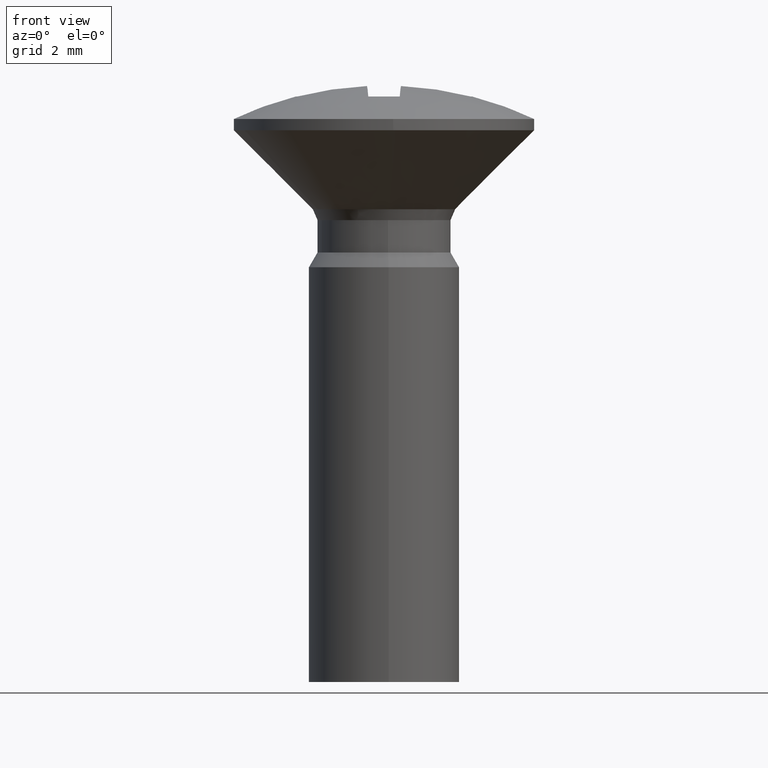
[diagram: clean part render]
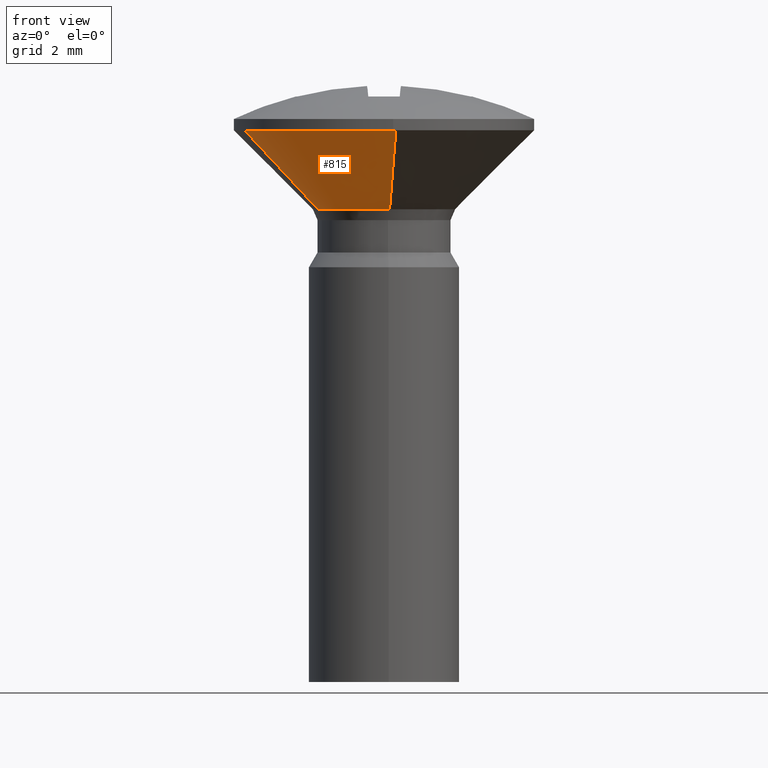
[diagram: same view with one face highlighted and labeled with its STEP entity id]
A machine part, front view. The second image highlights one B-rep face of the part: STEP entity #815.
In plain terms, the highlighted face is a freeform B-spline surface patch.
Its self-contained STEP definition (entity closure, byte-faithful):
#100=CARTESIAN_POINT('',(0.244193768757962,-3.992539217503020,-0.299999999999963));
#101=VERTEX_POINT('',#100);
#107=CARTESIAN_POINT('',(0.313836115509924,-3.987669028289972,-0.300000326692796));
#108=VERTEX_POINT('',#107);
#109=CARTESIAN_POINT('',(0.313836115509924,-3.987669028289972,-0.300000326692796));
#110=CARTESIAN_POINT('',(0.279035888811667,-3.990408188970513,-0.299999999999990));
#111=CARTESIAN_POINT('',(0.244193768757962,-3.992539217503020,-0.299999999999963));
#119=(BOUNDED_CURVE()B_SPLINE_CURVE(2,(#109,#110,#111),.UNSPECIFIED.,.F.,.U.)B_SPLINE_CURVE_WITH_KNOTS((3,3),(0.736331321419551,0.739332995898007),.UNSPECIFIED.)CURVE()GEOMETRIC_REPRESENTATION_ITEM()RATIONAL_B_SPLINE_CURVE((0.969723399552253,0.972855532959167,0.976072113804509))REPRESENTATION_ITEM(''));
#120=EDGE_CURVE('',#108,#101,#119,.T.);
#211=CARTESIAN_POINT('',(-3.719457679100426,-1.471609517971923,-0.299999999999405));
#212=VERTEX_POINT('',#211);
#226=CARTESIAN_POINT('',(0.244193768757962,-3.992539217503020,-0.299999999999963));
#227=CARTESIAN_POINT('',(0.122210662721106,-4.0,-0.299999999999990));
#228=CARTESIAN_POINT('',(0.0,-4.0,-0.299999999999990));
#229=CARTESIAN_POINT('',(-2.719095846936286,-4.0,-0.299999999999990));
#230=CARTESIAN_POINT('',(-3.719457679100427,-1.471609517971923,-0.299999999999405));
#238=(BOUNDED_CURVE()B_SPLINE_CURVE(2,(#226,#227,#228,#229,#230),.UNSPECIFIED.,.F.,.U.)B_SPLINE_CURVE_WITH_KNOTS((3,2,3),(0.739332995898006,0.750000000000000,0.937532549938958),.UNSPECIFIED.)CURVE()GEOMETRIC_REPRESENTATION_ITEM()RATIONAL_B_SPLINE_CURVE((0.976072113804507,0.987502827333882,1.0,0.780291951264337,0.890203187500767))REPRESENTATION_ITEM(''));
#239=EDGE_CURVE('',#101,#212,#238,.T.);
#768=CARTESIAN_POINT('',(-1.712785789023673,-0.677666500556094,-2.458128579622709));
#769=CARTESIAN_POINT('',(-1.212128404345949,-1.943066004503953,-2.458128579622709));
#770=CARTESIAN_POINT('',(0.144519589441585,-1.836295491832680,-2.458128579622709));
#771=CARTESIAN_POINT('',(-3.769624476354205,-1.491458093400987,-0.246046785509422));
#772=CARTESIAN_POINT('',(-2.667741016295589,-4.276442049373308,-0.246046785509422));
#773=CARTESIAN_POINT('',(0.318069302748127,-4.041453681010008,-0.246046785509422));
#781=(BOUNDED_SURFACE()B_SPLINE_SURFACE(2,1,((#768,#771),(#769,#772),(#770,#773)),.UNSPECIFIED.,.F.,.F.,.U.)B_SPLINE_SURFACE_WITH_KNOTS((3,3),(2,2),(0.0,5.336818170358812),(0.0,3.128281957581841),.UNSPECIFIED.)GEOMETRIC_REPRESENTATION_ITEM()RATIONAL_B_SPLINE_SURFACE(((0.906274169979695,0.906274169979695),(0.765685424949238,0.765685424949238),(1.0,1.0)))REPRESENTATION_ITEM('')SURFACE());
#782=CARTESIAN_POINT('',(0.148649267377790,-1.888768024630411,-2.405491297150141));
#783=VERTEX_POINT('',#782);
#784=CARTESIAN_POINT('',(-1.761729005883620,-0.697030964428379,-2.405491297153988));
#785=VERTEX_POINT('',#784);
#786=CARTESIAN_POINT('',(0.148649267377790,-1.888768024630412,-2.405491297150142));
#787=CARTESIAN_POINT('',(0.074439369577239,-1.894608470248300,-2.405491297155846));
#788=CARTESIAN_POINT('',(0.0,-1.894608470248300,-2.405491297155845));
#789=CARTESIAN_POINT('',(-1.287905505730615,-1.894608470248300,-2.405491297155845));
#790=CARTESIAN_POINT('',(-1.761729005883621,-0.697030964428379,-2.405491297153988));
#798=(BOUNDED_CURVE()B_SPLINE_CURVE(2,(#786,#787,#788,#789,#790),.UNSPECIFIED.,.F.,.U.)B_SPLINE_CURVE_WITH_KNOTS((3,2,3),(0.736331300624899,0.750000000000000,0.937532549936117),.UNSPECIFIED.)CURVE()GEOMETRIC_REPRESENTATION_ITEM()RATIONAL_B_SPLINE_CURVE((0.969723356155396,0.983986122572133,1.0,0.780291951267664,0.890203187497438))REPRESENTATION_ITEM(''));
#799=EDGE_CURVE('',#783,#785,#798,.T.);
#800=ORIENTED_EDGE('',*,*,#799,.F.);
#801=CARTESIAN_POINT('',(0.148649267377790,-1.888768024630411,-2.405491297150141));
#802=CARTESIAN_POINT('',(0.313836115509924,-3.987669028289972,-0.300000326692796));
#803=QUASI_UNIFORM_CURVE('',1,(#801,#802),.UNSPECIFIED.,.F.,.U.);
#804=EDGE_CURVE('',#783,#108,#803,.T.);
#805=ORIENTED_EDGE('',*,*,#804,.T.);
#806=ORIENTED_EDGE('',*,*,#120,.T.);
#807=ORIENTED_EDGE('',*,*,#239,.T.);
#808=CARTESIAN_POINT('',(-1.761729005883620,-0.697030964428379,-2.405491297153988));
#809=CARTESIAN_POINT('',(-3.719457679100426,-1.471609517971923,-0.299999999999405));
#810=QUASI_UNIFORM_CURVE('',1,(#808,#809),.UNSPECIFIED.,.F.,.U.);
#811=EDGE_CURVE('',#785,#212,#810,.T.);
#812=ORIENTED_EDGE('',*,*,#811,.F.);
#813=EDGE_LOOP('',(#800,#805,#806,#807,#812));
#814=FACE_OUTER_BOUND('',#813,.T.);
#815=ADVANCED_FACE('',(#814),#781,.T.);